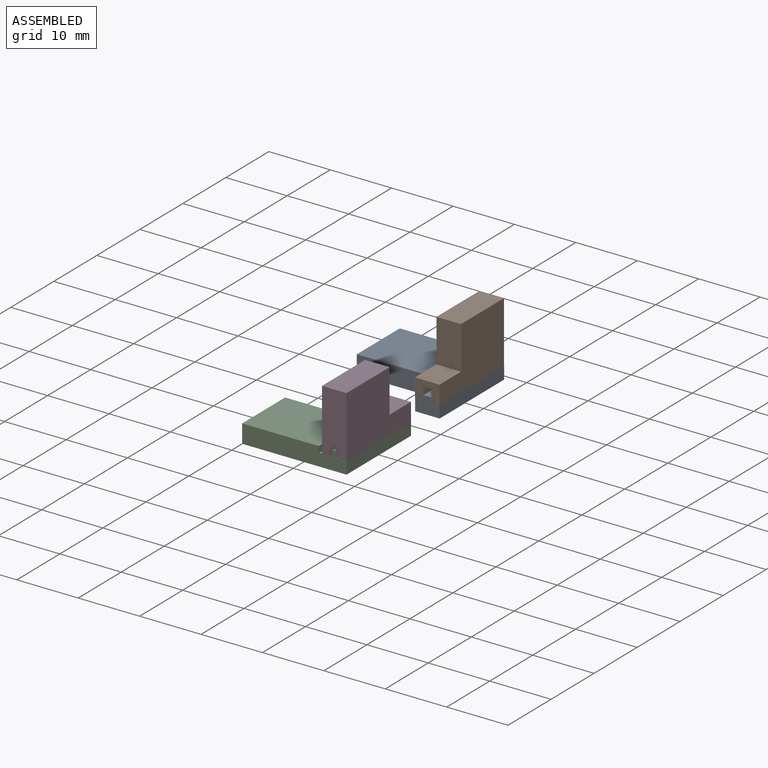
[diagram: assembled view]
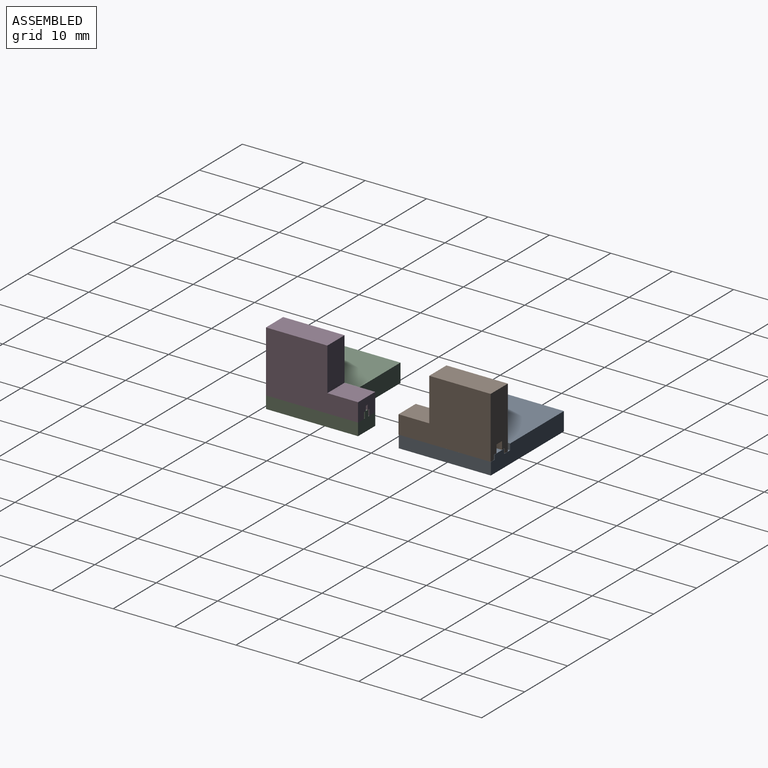
[diagram: assembled view, second angle]
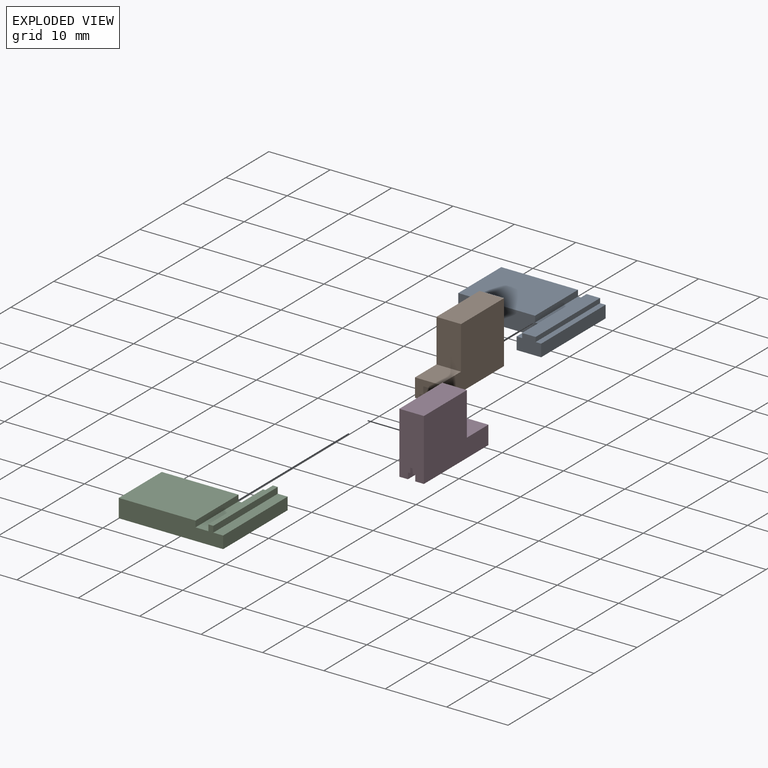
[diagram: exploded view]
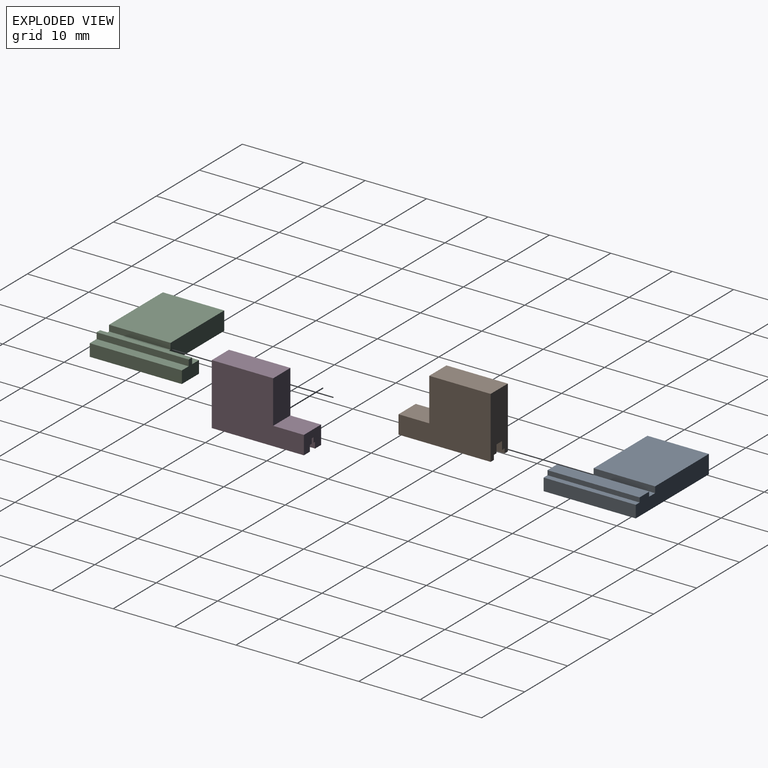
[diagram: exploded view, second angle]
ASSEMBLY  parts=4 mates=2
PART A: 14 faces, bbox 17x15x3 mm
  f0: plane 15x0.9mm, normal (0,0,1), area 13.5mm2, adj f1,f6,f7,f11
  f1: plane 17x3mm, normal (0,-1,0), area 48.2mm2, adj f0,f2,f3,f7,f8,f9,f10,f11
  f2: plane 17x15mm, normal (0,0,-1), area 190mm2, adj f1,f3,f4,f5,f6,f7
  f3: plane 10x3mm, normal (1,0,0), area 30mm2, adj f1,f2,f4,f13
  f4: plane 13x3mm, normal (0,1,0), area 38.5mm2, adj f2,f3,f5,f8,f12,f13
  f5: plane 5x2mm, normal (1,0,0), area 10mm2, adj f2,f4,f6,f8
  f6: plane 4x2.75mm, normal (0,1,0), area 9.6mm2, adj f0,f2,f5,f7,f8,f9,f10,f11
  f7: plane 15x2mm, normal (-1,0,0), area 30mm2, adj f0,f1,f2,f6
  f8: plane 15x1.4mm, normal (0,0,1), area 18.5mm2, adj f1,f4,f5,f6,f10,f12
  f9: plane 15x2.2mm, normal (0,0,1), area 33mm2, adj f1,f6,f10,f11
  f10: plane 15x0.75mm, normal (1,0,0), area 11.2mm2, adj f1,f6,f8,f9
  f11: plane 15x0.75mm, normal (-1,0,0), area 11.2mm2, adj f0,f1,f6,f9
  f12: plane 10x1mm, normal (-1,0,0), area 10mm2, adj f1,f4,f8,f13
  f13: plane 12.5x10mm, normal (0,0,1), area 125mm2, adj f1,f3,f4,f12
PART B: 16 faces, bbox 4x15x10 mm
  f0: plane 15x10mm, normal (-1,0,0), area 115mm2, adj f1,f2,f4,f5,f14,f15
  f1: plane 10x4mm, normal (0,-1,0), area 36.4mm2, adj f0,f2,f3,f5,f6,f7,f8,f9
  f2: plane 15x0.75mm, normal (0,0,-1), area 11.3mm2, adj f0,f1,f4,f7
  f3: plane 15x10mm, normal (1,0,0), area 115mm2, adj f1,f4,f5,f6,f14,f15
  f4: plane 4x3mm, normal (0,1,0), area 8.4mm2, adj f0,f2,f3,f6,f7,f8,f9,f10
  f5: plane 10x4mm, normal (0,0,1), area 40mm2, adj f0,f1,f3,f15
  f6: plane 15x0.75mm, normal (0,0,-1), area 11.3mm2, adj f1,f3,f4,f13
  f7: plane 15x0.75mm, normal (1,0,0), area 11.2mm2, adj f1,f2,f4,f8
  f8: plane 15x0.6mm, normal (0,0,-1), area 9mm2, adj f1,f4,f7,f9
  f9: plane 15x1.3mm, normal (1,0,0), area 19.5mm2, adj f1,f4,f8,f10
  f10: plane 15x1.3mm, normal (0,0,-1), area 19.5mm2, adj f1,f4,f9,f11
  f11: plane 15x1.3mm, normal (-1,0,0), area 19.5mm2, adj f1,f4,f10,f12
  f12: plane 15x0.6mm, normal (0,0,-1), area 9mm2, adj f1,f4,f11,f13
  f13: plane 15x0.75mm, normal (-1,0,0), area 11.2mm2, adj f1,f4,f6,f12
  f14: plane 5x4mm, normal (0,0,1), area 20mm2, adj f0,f3,f4,f15
  f15: plane 7x4mm, normal (0,1,0), area 28mm2, adj f0,f3,f5,f14
PART C: 14 faces, bbox 17x15x3 mm
  f0: plane 15x2.1mm, normal (0,0,-1), area 29mm2, adj f1,f5,f6,f7,f10,f12
  f1: plane 17x3mm, normal (0,-1,0), area 47.3mm2, adj f0,f2,f3,f4,f8,f9,f10,f11
  f2: plane 17x15mm, normal (0,0,1), area 190mm2, adj f1,f4,f5,f6,f7,f8
  f3: plane 15x1.6mm, normal (0,0,-1), area 24mm2, adj f1,f7,f8,f9
  f4: plane 10x3mm, normal (1,0,0), area 30mm2, adj f1,f2,f5,f13
  f5: plane 13x3mm, normal (0,1,0), area 38.5mm2, adj f0,f2,f4,f6,f12,f13
  f6: plane 5x2mm, normal (1,0,0), area 10mm2, adj f0,f2,f5,f7
  f7: plane 4x3mm, normal (0,1,0), area 8.8mm2, adj f0,f2,f3,f6,f8,f9,f10,f11
  f8: plane 15x2mm, normal (-1,0,0), area 30mm2, adj f1,f2,f3,f7
  f9: plane 15x1mm, normal (-1,0,0), area 15mm2, adj f1,f3,f7,f11
  f10: plane 15x1mm, normal (1,0,0), area 15mm2, adj f0,f1,f7,f11
  f11: plane 15x0.8mm, normal (0,0,-1), area 12mm2, adj f1,f7,f9,f10
  f12: plane 10x1mm, normal (-1,0,0), area 10mm2, adj f0,f1,f5,f13
  f13: plane 12.5x10mm, normal (0,0,-1), area 125mm2, adj f1,f4,f5,f12
PART D: 16 faces, bbox 4x15x10 mm
  f0: plane 15x10mm, normal (-1,0,0), area 115mm2, adj f1,f2,f4,f5,f14,f15
  f1: plane 10x4mm, normal (0,-1,0), area 38.5mm2, adj f0,f2,f3,f5,f6,f7,f8,f9
  f2: plane 15x1.4mm, normal (0,0,-1), area 21mm2, adj f0,f1,f4,f7
  f3: plane 15x10mm, normal (1,0,0), area 115mm2, adj f1,f4,f5,f6,f14,f15
  f4: plane 4x3mm, normal (0,1,0), area 10.5mm2, adj f0,f2,f3,f6,f7,f8,f9,f10
  f5: plane 10x4mm, normal (0,0,1), area 40mm2, adj f0,f1,f3,f15
  f6: plane 15x1.4mm, normal (0,0,-1), area 21mm2, adj f1,f3,f4,f13
  f7: plane 15x1mm, normal (1,0,0), area 15mm2, adj f1,f2,f4,f8
  f8: plane 15x0.38mm, normal (0,0,-1), area 5.7mm2, adj f1,f4,f7,f9
  f9: plane 15x0.8mm, normal (1,0,0.02), area 12mm2, adj f1,f4,f8,f10
  f10: plane 15x0.4mm, normal (0,0,-1), area 6mm2, adj f1,f4,f9,f11
  f11: plane 15x0.8mm, normal (-1,0,-0.02), area 12mm2, adj f1,f4,f10,f12
  f12: plane 15x0.42mm, normal (0,0,-1), area 6.3mm2, adj f1,f4,f11,f13
  f13: plane 15x1mm, normal (-1,0,0), area 15mm2, adj f1,f4,f6,f12
  f14: plane 5x4mm, normal (0,0,1), area 20mm2, adj f0,f3,f4,f15
  f15: plane 7x4mm, normal (0,1,0), area 28mm2, adj f0,f3,f5,f14
PLACE A rot(axis=(0,0,1),180deg) t=(5.79,22.94,-4.23)mm
PLACE B rot(axis=(0,0,-1),180deg) t=(5.79,22.91,-4.23)mm
PLACE C rot(axis=(0,1,0),180deg) t=(5.77,-3.7,-4.23)mm
PLACE D rot(axis=(0.82,-0.03,0.58),0deg) t=(5.77,-3.7,-4.23)mm
MATE slider A.f1 <-> B.f1  axis (0,1,0) through (7.79,27.94,-4.23)mm
MATE slider D.f4 <-> C.f7  axis (0,1,0) through (7.77,6.3,-4.23)mm
